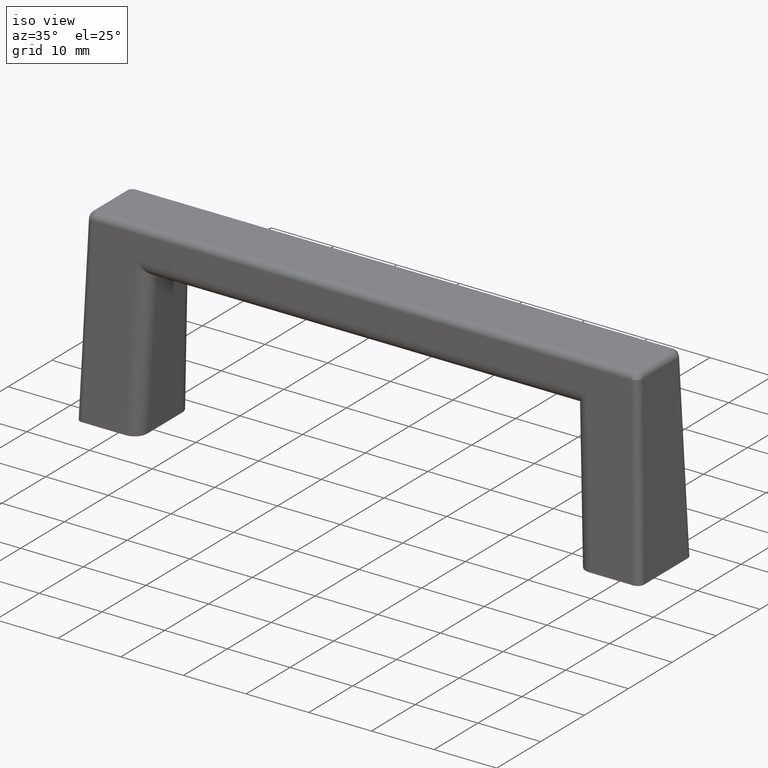
[diagram: clean part render]
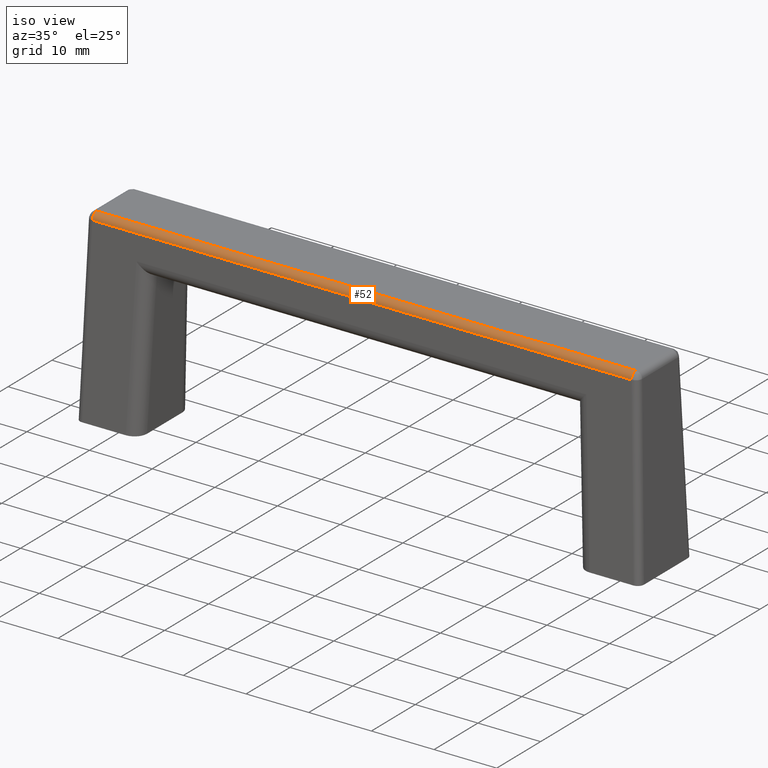
[diagram: same view with one face highlighted and labeled with its STEP entity id]
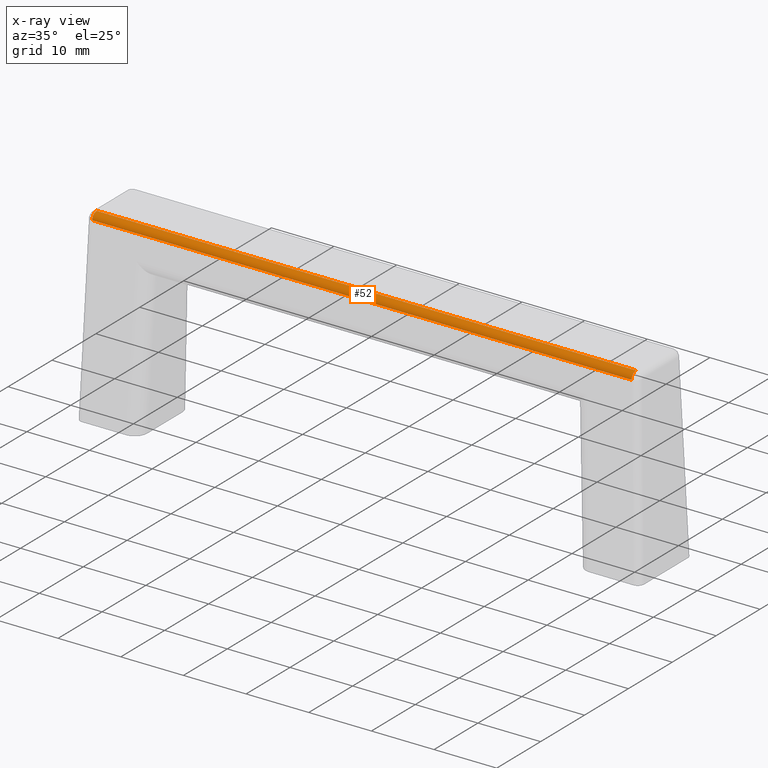
[diagram: x-ray of the same camera — body ghosted, the highlighted face saturated]
A machine part, iso view. The second image highlights one B-rep face of the part: STEP entity #52.
The next image is the same camera in x-ray: the body ghosted, the highlighted face saturated — about 0% of this face is hidden behind the body in this view.
In plain terms, the highlighted cylindrical surface (edge-blend (fillet) strip) has radius 1 mm, axis along (1, -0, -0).
Its self-contained STEP definition (entity closure, byte-faithful):
#52=ADVANCED_FACE('',(#195),#194,.T.);
#194=CYLINDRICAL_SURFACE('',#491,1.00000000000E+00);
#195=FACE_OUTER_BOUND('',#492,.T.);
#488=CARTESIAN_POINT('',(4.52379676317E+01,-4.03254459612E+00,2.90000000000E+01));
#489=DIRECTION('',(1.00000000000E+00,-6.13896254988E-15,-2.51223175368E-16));
#490=DIRECTION('',(6.14092110496E-15,9.99961923064E-01,8.72653549839E-03));
#491=AXIS2_PLACEMENT_3D('',#488,#489,#490);
#492=EDGE_LOOP('',(#690,#691,#692,#693));
#690=ORIENTED_EDGE('',*,*,#837,.T.);
#691=ORIENTED_EDGE('',*,*,#838,.F.);
#692=ORIENTED_EDGE('',*,*,#835,.F.);
#693=ORIENTED_EDGE('',*,*,#839,.F.);
#835=EDGE_CURVE('',#1099,#1119,#1120,.T.);
#837=EDGE_CURVE('',#1132,#1133,#1134,.T.);
#838=EDGE_CURVE('',#1119,#1133,#1140,.T.);
#839=EDGE_CURVE('',#1132,#1099,#1146,.T.);
#1099=VERTEX_POINT('',#1570);
#1119=VERTEX_POINT('',#1582);
#1120=CIRCLE('',#1586,1.00000000000E+00);
#1132=VERTEX_POINT('',#1591);
#1133=VERTEX_POINT('',#1592);
#1134=CIRCLE('',#1596,1.00000000000E+00);
#1140=LINE('',#1597,#1598);
#1146=LINE('',#1600,#1601);
#1570=CARTESIAN_POINT('',(-4.30327445983E+01,-5.03198923562E+00,2.90333228537E+01));
#1582=CARTESIAN_POINT('',(-4.30327445983E+01,-4.03254459612E+00,3.00000000000E+01));
#1583=CARTESIAN_POINT('',(-4.30327445983E+01,-4.03254459612E+00,2.90000000000E+01));
#1584=DIRECTION('',(-1.00000000000E+00,2.13895864052E-14,1.84334155565E-15));
#1585=DIRECTION('',(2.13162820728E-14,9.99444639499E-01,-3.33228536847E-02));
#1586=AXIS2_PLACEMENT_3D('',#1583,#1584,#1585);
#1591=CARTESIAN_POINT('',(4.30325445961E+01,-5.03198923562E+00,2.90333228537E+01));
#1592=CARTESIAN_POINT('',(4.30325445961E+01,-4.03254459612E+00,3.00000000000E+01));
#1593=CARTESIAN_POINT('',(4.30325445961E+01,-4.03254459612E+00,2.90000000000E+01));
#1594=DIRECTION('',(-1.00000000000E+00,-2.11341587447E-14,5.81764115714E-15));
#1595=DIRECTION('',(-2.13162820728E-14,9.99444639499E-01,-3.33228536847E-02));
#1596=AXIS2_PLACEMENT_3D('',#1593,#1594,#1595);
#1597=CARTESIAN_POINT('',(-4.30327445983E+01,-4.03254459612E+00,3.00000000000E+01));
#1598=VECTOR('',#1599,8.60652891944E+01);
#1599=DIRECTION('',(1.00000000000E+00,0.00000000000E+00,0.00000000000E+00));
#1600=CARTESIAN_POINT('',(4.30325445961E+01,-5.03198923562E+00,2.90333228537E+01));
#1601=VECTOR('',#1602,8.60652891944E+01);
#1602=DIRECTION('',(-1.00000000000E+00,0.00000000000E+00,0.00000000000E+00));